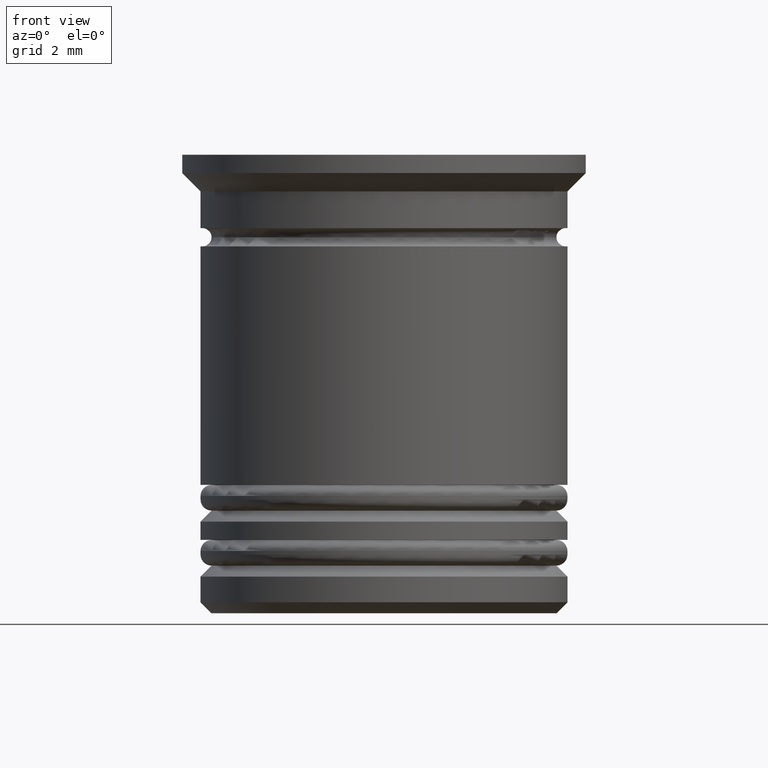
[diagram: clean part render]
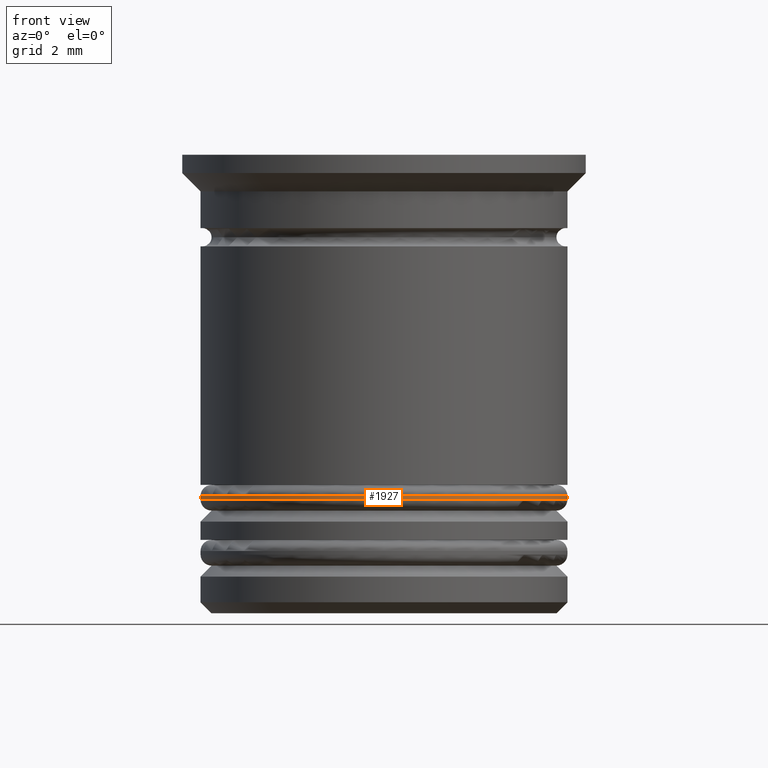
[diagram: same view with one face highlighted and labeled with its STEP entity id]
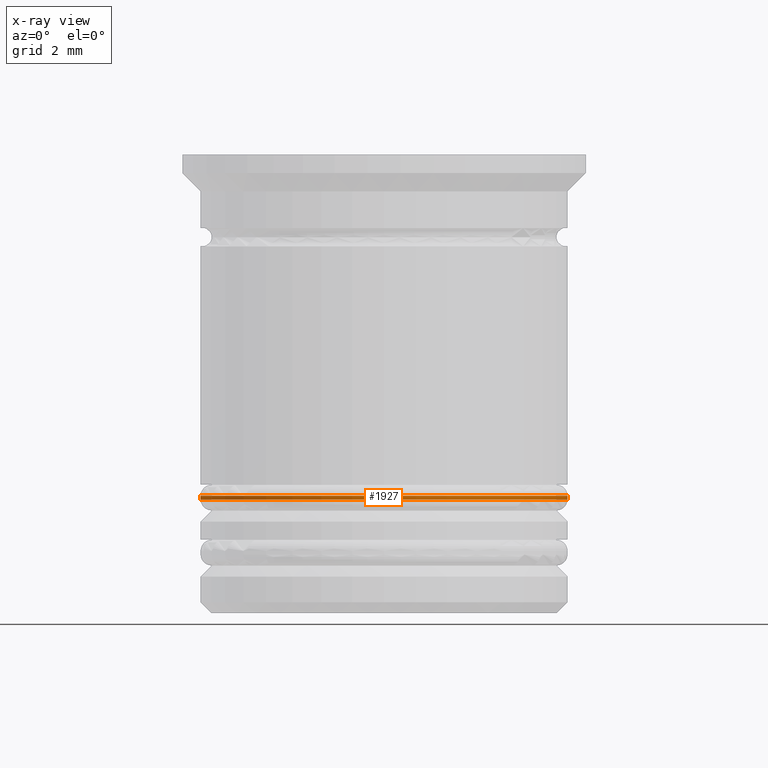
[diagram: x-ray of the same camera — body ghosted, the highlighted face saturated]
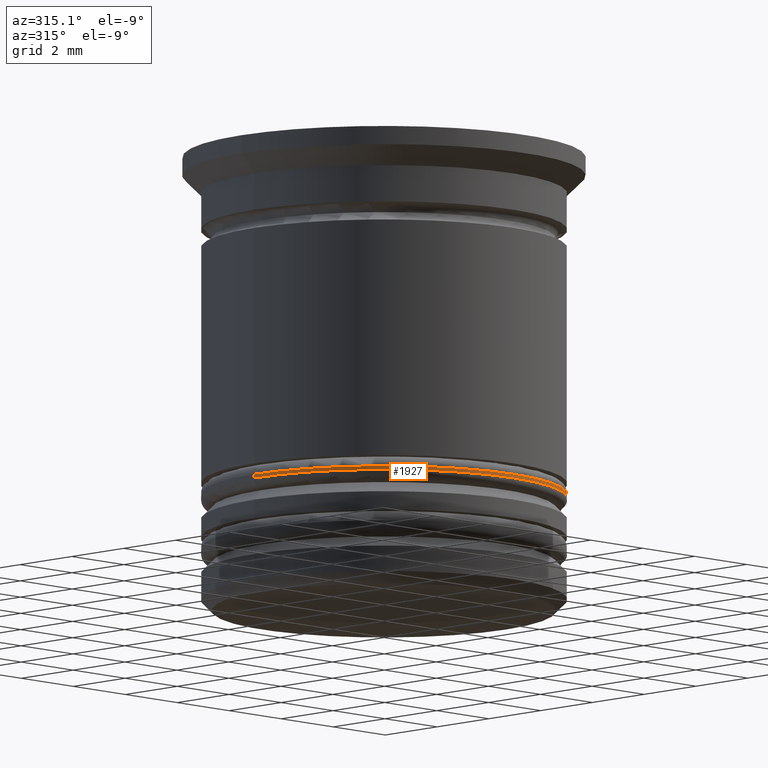
[diagram: same view with one face highlighted and labeled with its STEP entity id]
A machine part, front view. The second image highlights one B-rep face of the part: STEP entity #1927.
The next image is the same camera in x-ray: the body ghosted, the highlighted face saturated — about 0% of this face is hidden behind the body in this view.
A second angle (auxiliary view) of the same face is appended — the face is thin or edge-on in the first view.
In plain terms, the highlighted cylindrical surface (partial cylindrical patch) has radius 5 mm, axis along (-0, -0, 1).
Its self-contained STEP definition (entity closure, byte-faithful):
#44 = DIRECTION ( 'NONE',  ( 1.000000000000000000, 0.000000000000000000, 0.000000000000000000 ) ) ;
#141 = CARTESIAN_POINT ( 'NONE',  ( 0.000000000000000000, 0.000000000000000000, -9.400000000000007461 ) ) ;
#175 = LINE ( 'NONE', #1475, #568 ) ;
#227 = ORIENTED_EDGE ( 'NONE', *, *, #1072, .T. ) ;
#360 = VERTEX_POINT ( 'NONE', #1690 ) ;
#419 = FACE_OUTER_BOUND ( 'NONE', #1560, .T. ) ;
#432 = AXIS2_PLACEMENT_3D ( 'NONE', #1982, #869, #1834 ) ;
#451 = VERTEX_POINT ( 'NONE', #1504 ) ;
#525 = EDGE_CURVE ( 'NONE', #360, #451, #175, .T. ) ;
#534 = ORIENTED_EDGE ( 'NONE', *, *, #846, .F. ) ;
#568 = VECTOR ( 'NONE', #808, 1000.000000000000000 ) ;
#728 = VERTEX_POINT ( 'NONE', #1069 ) ;
#758 = ORIENTED_EDGE ( 'NONE', *, *, #1787, .T. ) ;
#760 = DIRECTION ( 'NONE',  ( -0.000000000000000000, -0.000000000000000000, 1.000000000000000000 ) ) ;
#794 = LINE ( 'NONE', #1088, #1143 ) ;
#808 = DIRECTION ( 'NONE',  ( -0.000000000000000000, -0.000000000000000000, 1.000000000000000000 ) ) ;
#819 = DIRECTION ( 'NONE',  ( 1.000000000000000000, 0.000000000000000000, 0.000000000000000000 ) ) ;
#846 = EDGE_CURVE ( 'NONE', #1362, #728, #794, .T. ) ;
#869 = DIRECTION ( 'NONE',  ( 0.000000000000000000, 0.000000000000000000, -1.000000000000000000 ) ) ;
#919 = DIRECTION ( 'NONE',  ( -0.000000000000000000, -0.000000000000000000, 1.000000000000000000 ) ) ;
#976 = CIRCLE ( 'NONE', #1719, 5.000000000000000888 ) ;
#1069 = CARTESIAN_POINT ( 'NONE',  ( -5.000000000000000888, 6.123233995736767268E-16, -9.300000000000000711 ) ) ;
#1072 = EDGE_CURVE ( 'NONE', #451, #728, #1144, .T. ) ;
#1079 = CARTESIAN_POINT ( 'NONE',  ( 0.000000000000000000, 0.000000000000000000, -23.84213562373096451 ) ) ;
#1088 = CARTESIAN_POINT ( 'NONE',  ( -5.000000000000000888, 6.123233995736767268E-16, -23.84213562373096451 ) ) ;
#1143 = VECTOR ( 'NONE', #919, 1000.000000000000000 ) ;
#1144 = CIRCLE ( 'NONE', #432, 5.000000000000000888 ) ;
#1150 = AXIS2_PLACEMENT_3D ( 'NONE', #1079, #760, #44 ) ;
#1200 = ORIENTED_EDGE ( 'NONE', *, *, #525, .T. ) ;
#1362 = VERTEX_POINT ( 'NONE', #1615 ) ;
#1475 = CARTESIAN_POINT ( 'NONE',  ( 5.000000000000000888, 0.000000000000000000, -23.84213562373096451 ) ) ;
#1504 = CARTESIAN_POINT ( 'NONE',  ( 5.000000000000000888, 0.000000000000000000, -9.300000000000000711 ) ) ;
#1560 = EDGE_LOOP ( 'NONE', ( #534, #758, #1200, #227 ) ) ;
#1615 = CARTESIAN_POINT ( 'NONE',  ( -5.000000000000000888, 6.123233995736767268E-16, -9.400000000000007461 ) ) ;
#1690 = CARTESIAN_POINT ( 'NONE',  ( 5.000000000000000888, 0.000000000000000000, -9.400000000000007461 ) ) ;
#1719 = AXIS2_PLACEMENT_3D ( 'NONE', #141, #1756, #819 ) ;
#1756 = DIRECTION ( 'NONE',  ( 0.000000000000000000, 0.000000000000000000, 1.000000000000000000 ) ) ;
#1787 = EDGE_CURVE ( 'NONE', #1362, #360, #976, .T. ) ;
#1834 = DIRECTION ( 'NONE',  ( -1.000000000000000000, 0.000000000000000000, 0.000000000000000000 ) ) ;
#1860 = CYLINDRICAL_SURFACE ( 'NONE', #1150, 5.000000000000000888 ) ;
#1927 = ADVANCED_FACE ( 'NONE', ( #419 ), #1860, .T. ) ;
#1982 = CARTESIAN_POINT ( 'NONE',  ( 0.000000000000000000, 0.000000000000000000, -9.300000000000000711 ) ) ;